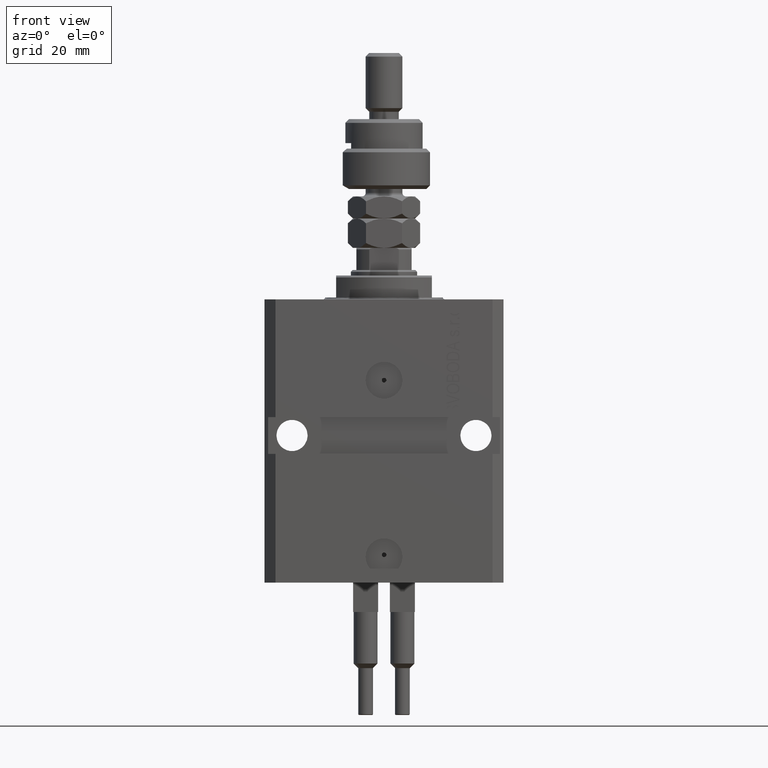
[diagram: clean part render]
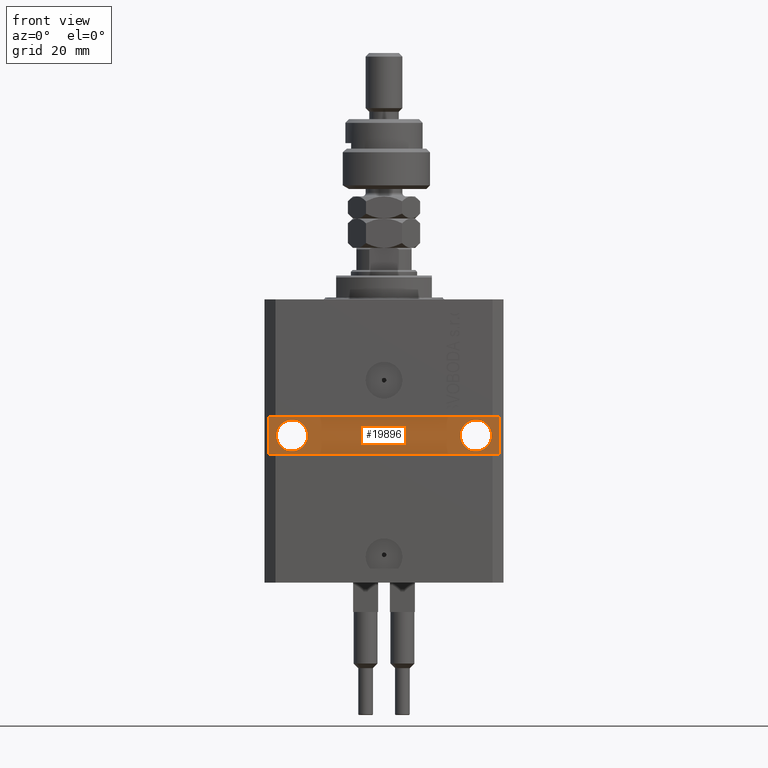
[diagram: same view with one face highlighted and labeled with its STEP entity id]
A machine part, front view. The second image highlights one B-rep face of the part: STEP entity #19896.
In plain terms, the highlighted planar face has unit normal (0, -1, 0).
Its self-contained STEP definition (entity closure, byte-faithful):
#202 = ORIENTED_EDGE ( 'NONE', *, *, #31111, .F. ) ;
#310 = VECTOR ( 'NONE', #48982, 1000.000000000000000 ) ;
#834 = EDGE_CURVE ( 'NONE', #9963, #35880, #29899, .T. ) ;
#971 = VERTEX_POINT ( 'NONE', #8766 ) ;
#1470 = ORIENTED_EDGE ( 'NONE', *, *, #19782, .F. ) ;
#1835 = VERTEX_POINT ( 'NONE', #33575 ) ;
#2027 = CARTESIAN_POINT ( 'NONE',  ( 31.49999999999650413, -20.49999999999949196, -41.99999999999998579 ) ) ;
#2246 = ORIENTED_EDGE ( 'NONE', *, *, #36246, .T. ) ;
#4585 = VERTEX_POINT ( 'NONE', #12838 ) ;
#5035 = AXIS2_PLACEMENT_3D ( 'NONE', #5038, #41010, #40500 ) ;
#5038 = CARTESIAN_POINT ( 'NONE',  ( -24.99999999999999289, -20.49999999999950262, -37.00000000000000000 ) ) ;
#7188 = CARTESIAN_POINT ( 'NONE',  ( 31.49999999999651124, -20.49999999999949196, -32.00000000000000711 ) ) ;
#8766 = CARTESIAN_POINT ( 'NONE',  ( -20.75000000000621014, -20.49999999999950262, -37.00000000000000000 ) ) ;
#9190 = CARTESIAN_POINT ( 'NONE',  ( 32.49999999999650413, -20.49999999999949196, -32.00000000000000711 ) ) ;
#9963 = VERTEX_POINT ( 'NONE', #7188 ) ;
#10461 = ORIENTED_EDGE ( 'NONE', *, *, #21162, .F. ) ;
#11050 = DIRECTION ( 'NONE',  ( 1.067522139062765303E-16, -1.000000000000000000, 0.000000000000000000 ) ) ;
#11294 = FACE_BOUND ( 'NONE', #42451, .T. ) ;
#12838 = CARTESIAN_POINT ( 'NONE',  ( 20.75000000001095657, -20.49999999999949551, -36.99999999999999289 ) ) ;
#13030 = ORIENTED_EDGE ( 'NONE', *, *, #30299, .T. ) ;
#13146 = DIRECTION ( 'NONE',  ( 1.000000000000000000, 0.000000000000000000, 0.000000000000000000 ) ) ;
#13624 = CARTESIAN_POINT ( 'NONE',  ( -31.49999999999650413, -20.49999999999950262, -32.00000000000000000 ) ) ;
#13885 = CARTESIAN_POINT ( 'NONE',  ( 25.00000000000000711, -20.49999999999949551, -36.99999999999999289 ) ) ;
#15804 = DIRECTION ( 'NONE',  ( 1.101411730780568590E-16, -1.000000000000000000, 0.000000000000000000 ) ) ;
#16505 = AXIS2_PLACEMENT_3D ( 'NONE', #13885, #45488, #40861 ) ;
#17286 = CIRCLE ( 'NONE', #18955, 4.249999999993782751 ) ;
#18055 = VERTEX_POINT ( 'NONE', #47756 ) ;
#18288 = FACE_OUTER_BOUND ( 'NONE', #35222, .T. ) ;
#18535 = CARTESIAN_POINT ( 'NONE',  ( -31.49999999999650413, -20.49999999999950262, -77.00000000000000000 ) ) ;
#18664 = EDGE_CURVE ( 'NONE', #971, #47170, #17286, .T. ) ;
#18955 = AXIS2_PLACEMENT_3D ( 'NONE', #23531, #15804, #31485 ) ;
#19782 = EDGE_CURVE ( 'NONE', #4585, #18055, #19792, .T. ) ;
#19792 = CIRCLE ( 'NONE', #16505, 4.249999999989050536 ) ;
#19896 = ADVANCED_FACE ( 'NONE', ( #49836, #11294, #18288 ), #26250, .T. ) ;
#20084 = VECTOR ( 'NONE', #34178, 1000.000000000000000 ) ;
#20522 = ORIENTED_EDGE ( 'NONE', *, *, #46065, .F. ) ;
#20596 = EDGE_LOOP ( 'NONE', ( #20522, #1470 ) ) ;
#21162 = EDGE_CURVE ( 'NONE', #47170, #971, #49345, .T. ) ;
#21211 = ORIENTED_EDGE ( 'NONE', *, *, #834, .F. ) ;
#22169 = CARTESIAN_POINT ( 'NONE',  ( 25.00000000000000711, -20.49999999999949551, -36.99999999999999289 ) ) ;
#22972 = CIRCLE ( 'NONE', #34455, 4.249999999989050536 ) ;
#23531 = CARTESIAN_POINT ( 'NONE',  ( -24.99999999999999289, -20.49999999999950262, -37.00000000000000000 ) ) ;
#26250 = PLANE ( 'NONE',  #29655 ) ;
#26382 = CARTESIAN_POINT ( 'NONE',  ( -32.49999999999650413, -20.49999999999949907, -41.99999999999999289 ) ) ;
#27051 = DIRECTION ( 'NONE',  ( 0.000000000000000000, 0.000000000000000000, -1.000000000000000000 ) ) ;
#29295 = VECTOR ( 'NONE', #46617, 1000.000000000000000 ) ;
#29655 = AXIS2_PLACEMENT_3D ( 'NONE', #46241, #11050, #42382 ) ;
#29899 = LINE ( 'NONE', #41690, #48601 ) ;
#30299 = EDGE_CURVE ( 'NONE', #9963, #40669, #37206, .T. ) ;
#31111 = EDGE_CURVE ( 'NONE', #1835, #40669, #38036, .T. ) ;
#31485 = DIRECTION ( 'NONE',  ( 1.000000000000000000, 0.000000000000000000, 0.000000000000000000 ) ) ;
#33206 = DIRECTION ( 'NONE',  ( 1.394545208792185644E-16, -1.000000000000000000, 1.232595164407830946E-32 ) ) ;
#33575 = CARTESIAN_POINT ( 'NONE',  ( -31.49999999999650413, -20.49999999999949907, -41.99999999999999289 ) ) ;
#34158 = ORIENTED_EDGE ( 'NONE', *, *, #18664, .F. ) ;
#34178 = DIRECTION ( 'NONE',  ( 0.000000000000000000, 0.000000000000000000, 1.000000000000000000 ) ) ;
#34455 = AXIS2_PLACEMENT_3D ( 'NONE', #22169, #33206, #13146 ) ;
#35222 = EDGE_LOOP ( 'NONE', ( #13030, #202, #2246, #21211 ) ) ;
#35880 = VERTEX_POINT ( 'NONE', #2027 ) ;
#36246 = EDGE_CURVE ( 'NONE', #1835, #35880, #49714, .T. ) ;
#37206 = LINE ( 'NONE', #9190, #310 ) ;
#38036 = LINE ( 'NONE', #18535, #20084 ) ;
#40500 = DIRECTION ( 'NONE',  ( 1.000000000000000000, 0.000000000000000000, 0.000000000000000000 ) ) ;
#40669 = VERTEX_POINT ( 'NONE', #13624 ) ;
#40861 = DIRECTION ( 'NONE',  ( 1.000000000000000000, 0.000000000000000000, 0.000000000000000000 ) ) ;
#41010 = DIRECTION ( 'NONE',  ( 1.101411730780568590E-16, -1.000000000000000000, 0.000000000000000000 ) ) ;
#41690 = CARTESIAN_POINT ( 'NONE',  ( 31.49999999999651124, -20.49999999999949551, -77.00000000000000000 ) ) ;
#42382 = DIRECTION ( 'NONE',  ( 1.000000000000000000, 1.067522139062765303E-16, 0.000000000000000000 ) ) ;
#42451 = EDGE_LOOP ( 'NONE', ( #34158, #10461 ) ) ;
#44923 = CARTESIAN_POINT ( 'NONE',  ( -29.24999999999377920, -20.49999999999950262, -37.00000000000000000 ) ) ;
#45488 = DIRECTION ( 'NONE',  ( 1.394545208792185644E-16, -1.000000000000000000, 1.232595164407830946E-32 ) ) ;
#46065 = EDGE_CURVE ( 'NONE', #18055, #4585, #22972, .T. ) ;
#46241 = CARTESIAN_POINT ( 'NONE',  ( 2.166708070385810581E-15, -20.49999999999949907, 0.000000000000000000 ) ) ;
#46617 = DIRECTION ( 'NONE',  ( 1.000000000000000000, 1.067522139062765303E-16, 1.067522139062765303E-16 ) ) ;
#47170 = VERTEX_POINT ( 'NONE', #44923 ) ;
#47756 = CARTESIAN_POINT ( 'NONE',  ( 29.24999999998905764, -20.49999999999949551, -36.99999999999999289 ) ) ;
#48601 = VECTOR ( 'NONE', #27051, 1000.000000000000000 ) ;
#48982 = DIRECTION ( 'NONE',  ( -1.000000000000000000, -1.067522139062765303E-16, 1.067522139062765303E-16 ) ) ;
#49345 = CIRCLE ( 'NONE', #5035, 4.249999999993782751 ) ;
#49714 = LINE ( 'NONE', #26382, #29295 ) ;
#49836 = FACE_BOUND ( 'NONE', #20596, .T. ) ;